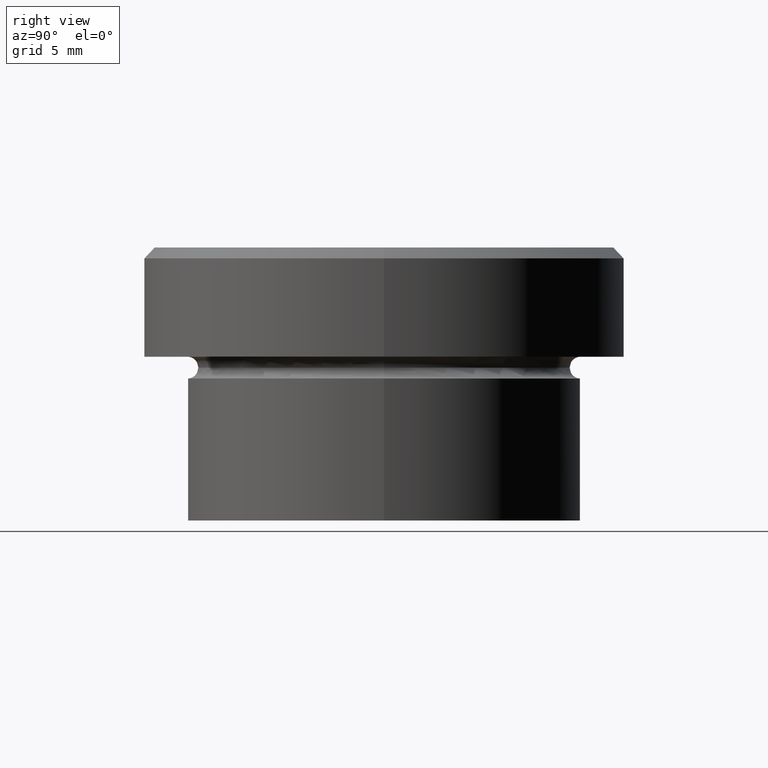
[diagram: clean part render]
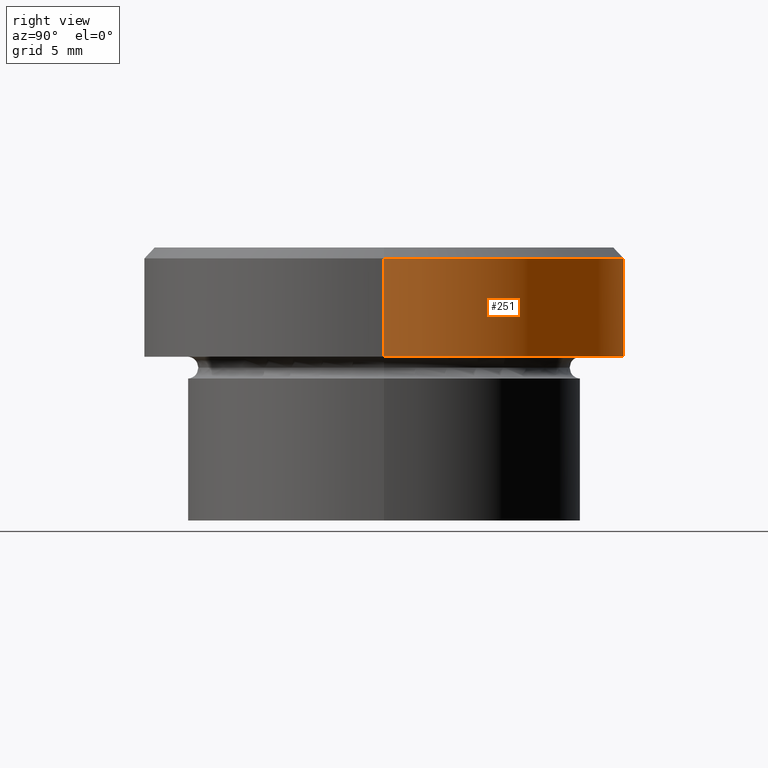
[diagram: same view with one face highlighted and labeled with its STEP entity id]
A machine part, right view. The second image highlights one B-rep face of the part: STEP entity #251.
In plain terms, the highlighted cylindrical surface (partial cylindrical patch) has radius 11 mm, axis along (-0, -0, 1).
Its self-contained STEP definition (entity closure, byte-faithful):
#11 = AXIS2_PLACEMENT_3D ( 'NONE', #336, #331, #118 ) ;
#46 = VECTOR ( 'NONE', #297, 1000.000000000000000 ) ;
#47 = EDGE_LOOP ( 'NONE', ( #242, #307, #134, #124 ) ) ;
#49 = DIRECTION ( 'NONE',  ( -0.000000000000000000, -0.000000000000000000, 1.000000000000000000 ) ) ;
#52 = LINE ( 'NONE', #179, #46 ) ;
#62 = AXIS2_PLACEMENT_3D ( 'NONE', #287, #255, #172 ) ;
#87 = CARTESIAN_POINT ( 'NONE',  ( -11.00000000000000000, 1.347111479062088405E-15, 0.000000000000000000 ) ) ;
#91 = DIRECTION ( 'NONE',  ( -0.000000000000000000, -0.000000000000000000, 1.000000000000000000 ) ) ;
#106 = VERTEX_POINT ( 'NONE', #366 ) ;
#118 = DIRECTION ( 'NONE',  ( 1.000000000000000000, 0.000000000000000000, 0.000000000000000000 ) ) ;
#122 = DIRECTION ( 'NONE',  ( 1.000000000000000000, 0.000000000000000000, 0.000000000000000000 ) ) ;
#124 = ORIENTED_EDGE ( 'NONE', *, *, #240, .F. ) ;
#134 = ORIENTED_EDGE ( 'NONE', *, *, #211, .T. ) ;
#167 = AXIS2_PLACEMENT_3D ( 'NONE', #346, #91, #122 ) ;
#172 = DIRECTION ( 'NONE',  ( 1.000000000000000000, 0.000000000000000000, 0.000000000000000000 ) ) ;
#176 = VERTEX_POINT ( 'NONE', #320 ) ;
#179 = CARTESIAN_POINT ( 'NONE',  ( 11.00000000000000000, 0.000000000000000000, 0.000000000000000000 ) ) ;
#210 = CARTESIAN_POINT ( 'NONE',  ( -11.00000000000000000, 1.347111479062088405E-15, -0.4999999999999968914 ) ) ;
#211 = EDGE_CURVE ( 'NONE', #224, #280, #244, .T. ) ;
#222 = EDGE_CURVE ( 'NONE', #106, #224, #241, .T. ) ;
#224 = VERTEX_POINT ( 'NONE', #210 ) ;
#240 = EDGE_CURVE ( 'NONE', #176, #280, #52, .T. ) ;
#241 = LINE ( 'NONE', #87, #335 ) ;
#242 = ORIENTED_EDGE ( 'NONE', *, *, #386, .T. ) ;
#244 = CIRCLE ( 'NONE', #11, 11.00000000000000000 ) ;
#251 = ADVANCED_FACE ( 'NONE', ( #314 ), #363, .T. ) ;
#255 = DIRECTION ( 'NONE',  ( -0.000000000000000000, -0.000000000000000000, 1.000000000000000000 ) ) ;
#258 = CARTESIAN_POINT ( 'NONE',  ( 11.00000000000000000, 0.000000000000000000, -0.4999999999999968914 ) ) ;
#280 = VERTEX_POINT ( 'NONE', #258 ) ;
#287 = CARTESIAN_POINT ( 'NONE',  ( 0.000000000000000000, 0.000000000000000000, 0.000000000000000000 ) ) ;
#297 = DIRECTION ( 'NONE',  ( -0.000000000000000000, -0.000000000000000000, 1.000000000000000000 ) ) ;
#307 = ORIENTED_EDGE ( 'NONE', *, *, #222, .T. ) ;
#314 = FACE_OUTER_BOUND ( 'NONE', #47, .T. ) ;
#320 = CARTESIAN_POINT ( 'NONE',  ( 11.00000000000000000, 0.000000000000000000, -5.000000000000000000 ) ) ;
#329 = CIRCLE ( 'NONE', #167, 11.00000000000000000 ) ;
#331 = DIRECTION ( 'NONE',  ( 0.000000000000000000, 0.000000000000000000, -1.000000000000000000 ) ) ;
#335 = VECTOR ( 'NONE', #49, 1000.000000000000000 ) ;
#336 = CARTESIAN_POINT ( 'NONE',  ( 0.000000000000000000, 0.000000000000000000, -0.4999999999999968914 ) ) ;
#346 = CARTESIAN_POINT ( 'NONE',  ( 0.000000000000000000, 0.000000000000000000, -5.000000000000000000 ) ) ;
#363 = CYLINDRICAL_SURFACE ( 'NONE', #62, 11.00000000000000000 ) ;
#366 = CARTESIAN_POINT ( 'NONE',  ( -11.00000000000000000, 1.347111479062088405E-15, -5.000000000000000000 ) ) ;
#386 = EDGE_CURVE ( 'NONE', #176, #106, #329, .T. ) ;